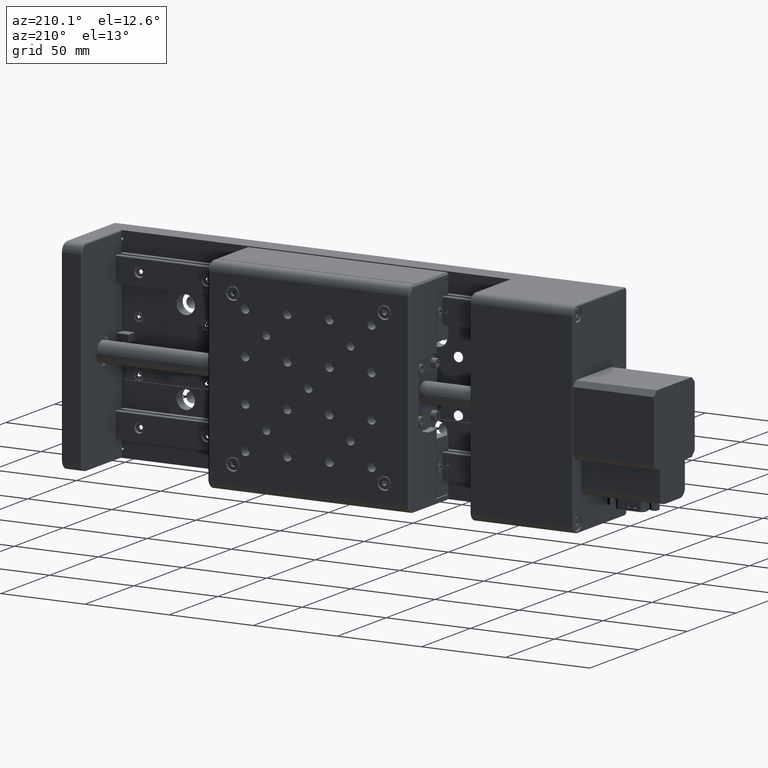
[diagram: clean part render]
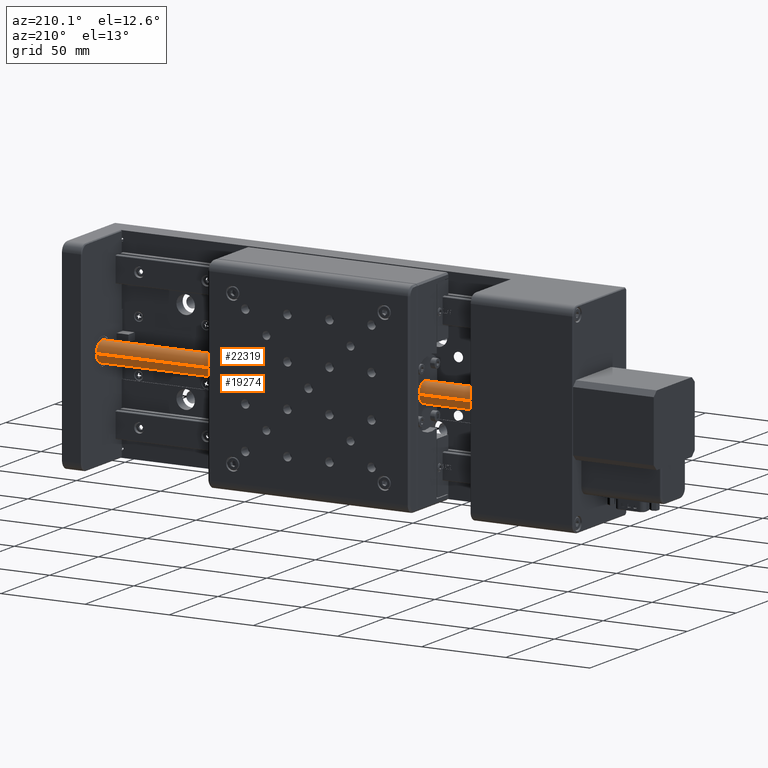
[diagram: same view with one multi-face feature highlighted, each face labeled with its STEP entity id]
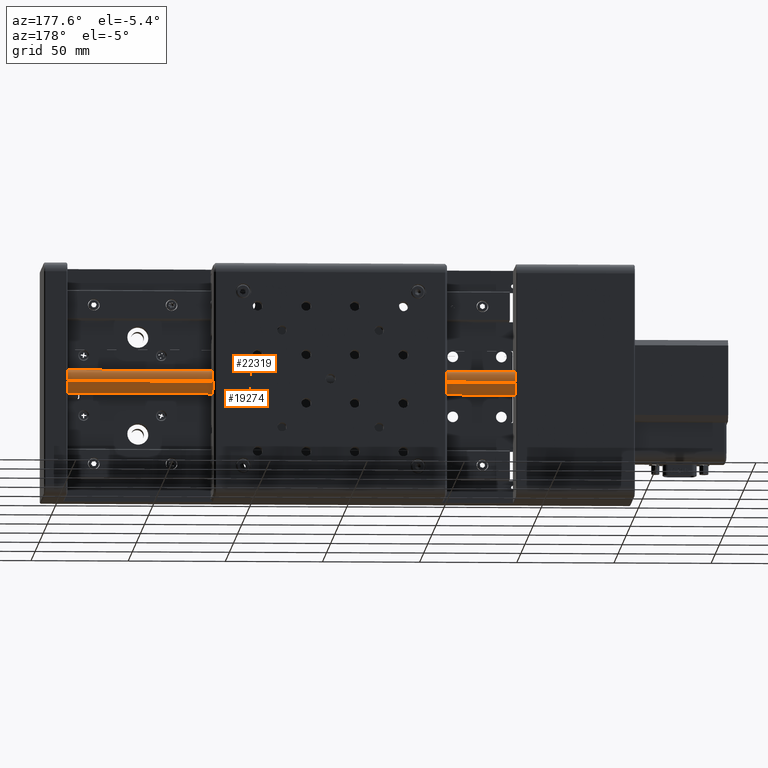
[diagram: same view with one multi-face feature highlighted, each face labeled with its STEP entity id]
A machine part, auxiliary view. The highlighted faces form ONE feature: a constant-radius fillet chain: 2 tangent blend faces with common blend radius 6 mm. The faces share edges in the B-rep.
A second angle (auxiliary view) of the same feature is appended — it is thin or edge-on in the first view.
Their STEP definitions:
[1] entity #22319 (Cylinder):
#294 = VECTOR ( 'NONE', #13156, 1000.000000000000000 ) ;
#410 = DIRECTION ( 'NONE',  ( 1.000000000000000000, 0.0000000000000000000, 0.0000000000000000000 ) ) ;
#1361 = EDGE_CURVE ( 'NONE', #15493, #36939, #4784, .T. ) ;
#4784 = CIRCLE ( 'NONE', #30787, 6.000000000000001800 ) ;
#6179 = EDGE_CURVE ( 'NONE', #10038, #26741, #37804, .T. ) ;
#7463 = CARTESIAN_POINT ( 'NONE',  ( 543.9875862552705700, 33.99999999999839400, 426.9433306992482400 ) ) ;
#7582 = DIRECTION ( 'NONE',  ( 0.0000000000000000000, -1.000000000000000000, 1.850371707708593800E-014 ) ) ;
#10038 = VERTEX_POINT ( 'NONE', #32347 ) ;
#11654 = CARTESIAN_POINT ( 'NONE',  ( 543.9875862552705700, 27.99999999999839100, 426.9433306992483500 ) ) ;
#13008 = AXIS2_PLACEMENT_3D ( 'NONE', #7463, #25182, #7582 ) ;
#13156 = DIRECTION ( 'NONE',  ( -1.000000000000000000, 0.0000000000000000000, 0.0000000000000000000 ) ) ;
#14266 = ORIENTED_EDGE ( 'NONE', *, *, #38669, .T. ) ;
#15293 = CARTESIAN_POINT ( 'NONE',  ( 306.9875862552705700, 27.99999999999839100, 426.9433306992483500 ) ) ;
#15493 = VERTEX_POINT ( 'NONE', #15293 ) ;
#16048 = CARTESIAN_POINT ( 'NONE',  ( 306.9875862552705700, 39.99999999999839400, 426.9433306992481200 ) ) ;
#18656 = EDGE_CURVE ( 'NONE', #26741, #15493, #34853, .T. ) ;
#19932 = CYLINDRICAL_SURFACE ( 'NONE', #13008, 6.000000000000001800 ) ;
#19982 = DIRECTION ( 'NONE',  ( 0.0000000000000000000, -1.000000000000000000, 1.850371707708593800E-014 ) ) ;
#20226 = CARTESIAN_POINT ( 'NONE',  ( 543.9875862552705700, 39.99999999999840100, 426.9433306992481200 ) ) ;
#22319 = ADVANCED_FACE ( 'NONE', ( #28312 ), #19932, .T. ) ;
#23755 = DIRECTION ( 'NONE',  ( -1.000000000000000000, 0.0000000000000000000, 0.0000000000000000000 ) ) ;
#25182 = DIRECTION ( 'NONE',  ( -1.000000000000000000, 0.0000000000000000000, 0.0000000000000000000 ) ) ;
#25424 = ORIENTED_EDGE ( 'NONE', *, *, #6179, .F. ) ;
#26097 = CARTESIAN_POINT ( 'NONE',  ( 306.9875862552705700, 33.99999999999839400, 426.9433306992482400 ) ) ;
#26193 = EDGE_LOOP ( 'NONE', ( #25424, #14266, #33062, #27530 ) ) ;
#26741 = VERTEX_POINT ( 'NONE', #11654 ) ;
#27530 = ORIENTED_EDGE ( 'NONE', *, *, #18656, .F. ) ;
#28312 = FACE_OUTER_BOUND ( 'NONE', #26193, .T. ) ;
#28594 = DIRECTION ( 'NONE',  ( -1.000000000000000000, 0.0000000000000000000, 0.0000000000000000000 ) ) ;
#30787 = AXIS2_PLACEMENT_3D ( 'NONE', #26097, #28594, #19982 ) ;
#31174 = CARTESIAN_POINT ( 'NONE',  ( 543.9875862552705700, 27.99999999999839100, 426.9433306992483500 ) ) ;
#32347 = CARTESIAN_POINT ( 'NONE',  ( 543.9875862552705700, 39.99999999999839400, 426.9433306992481200 ) ) ;
#32368 = AXIS2_PLACEMENT_3D ( 'NONE', #36041, #410, #33268 ) ;
#32913 = LINE ( 'NONE', #20226, #35720 ) ;
#33062 = ORIENTED_EDGE ( 'NONE', *, *, #1361, .F. ) ;
#33268 = DIRECTION ( 'NONE',  ( 0.0000000000000000000, 1.000000000000000000, -1.850371707708592600E-014 ) ) ;
#34853 = LINE ( 'NONE', #31174, #294 ) ;
#35720 = VECTOR ( 'NONE', #23755, 1000.000000000000000 ) ;
#36041 = CARTESIAN_POINT ( 'NONE',  ( 543.9875862552705700, 33.99999999999839400, 426.9433306992482400 ) ) ;
#36939 = VERTEX_POINT ( 'NONE', #16048 ) ;
#37804 = CIRCLE ( 'NONE', #32368, 6.000000000000005300 ) ;
#38669 = EDGE_CURVE ( 'NONE', #10038, #36939, #32913, .T. ) ;
[2] entity #19274 (Cylinder):
#8 = DIRECTION ( 'NONE',  ( 0.0000000000000000000, 1.000000000000000000, -1.850371707708592600E-014 ) ) ;
#294 = VECTOR ( 'NONE', #13156, 1000.000000000000000 ) ;
#1414 = ORIENTED_EDGE ( 'NONE', *, *, #18362, .F. ) ;
#2749 = EDGE_LOOP ( 'NONE', ( #33937, #24448, #5296, #1414 ) ) ;
#4232 = AXIS2_PLACEMENT_3D ( 'NONE', #11483, #17466, #8 ) ;
#5296 = ORIENTED_EDGE ( 'NONE', *, *, #18656, .T. ) ;
#5734 = DIRECTION ( 'NONE',  ( -1.000000000000000000, 0.0000000000000000000, 0.0000000000000000000 ) ) ;
#10038 = VERTEX_POINT ( 'NONE', #32347 ) ;
#11483 = CARTESIAN_POINT ( 'NONE',  ( 543.9875862552705700, 33.99999999999839400, 426.9433306992482400 ) ) ;
#11654 = CARTESIAN_POINT ( 'NONE',  ( 543.9875862552705700, 27.99999999999839100, 426.9433306992483500 ) ) ;
#13156 = DIRECTION ( 'NONE',  ( -1.000000000000000000, 0.0000000000000000000, 0.0000000000000000000 ) ) ;
#13641 = CYLINDRICAL_SURFACE ( 'NONE', #18539, 6.000000000000001800 ) ;
#14083 = FACE_OUTER_BOUND ( 'NONE', #2749, .T. ) ;
#14226 = DIRECTION ( 'NONE',  ( -1.000000000000000000, 0.0000000000000000000, 0.0000000000000000000 ) ) ;
#14603 = DIRECTION ( 'NONE',  ( 0.0000000000000000000, -1.000000000000000000, 1.850371707708593800E-014 ) ) ;
#14746 = CIRCLE ( 'NONE', #17653, 6.000000000000001800 ) ;
#15293 = CARTESIAN_POINT ( 'NONE',  ( 306.9875862552705700, 27.99999999999839100, 426.9433306992483500 ) ) ;
#15493 = VERTEX_POINT ( 'NONE', #15293 ) ;
#16048 = CARTESIAN_POINT ( 'NONE',  ( 306.9875862552705700, 39.99999999999839400, 426.9433306992481200 ) ) ;
#17466 = DIRECTION ( 'NONE',  ( 1.000000000000000000, 0.0000000000000000000, 0.0000000000000000000 ) ) ;
#17653 = AXIS2_PLACEMENT_3D ( 'NONE', #29087, #14226, #14603 ) ;
#17787 = CIRCLE ( 'NONE', #4232, 6.000000000000005300 ) ;
#18362 = EDGE_CURVE ( 'NONE', #36939, #15493, #14746, .T. ) ;
#18539 = AXIS2_PLACEMENT_3D ( 'NONE', #26664, #5734, #29840 ) ;
#18656 = EDGE_CURVE ( 'NONE', #26741, #15493, #34853, .T. ) ;
#19274 = ADVANCED_FACE ( 'NONE', ( #14083 ), #13641, .T. ) ;
#19563 = EDGE_CURVE ( 'NONE', #26741, #10038, #17787, .T. ) ;
#20226 = CARTESIAN_POINT ( 'NONE',  ( 543.9875862552705700, 39.99999999999840100, 426.9433306992481200 ) ) ;
#23755 = DIRECTION ( 'NONE',  ( -1.000000000000000000, 0.0000000000000000000, 0.0000000000000000000 ) ) ;
#24448 = ORIENTED_EDGE ( 'NONE', *, *, #19563, .F. ) ;
#26664 = CARTESIAN_POINT ( 'NONE',  ( 543.9875862552705700, 33.99999999999839400, 426.9433306992482400 ) ) ;
#26741 = VERTEX_POINT ( 'NONE', #11654 ) ;
#29087 = CARTESIAN_POINT ( 'NONE',  ( 306.9875862552705700, 33.99999999999839400, 426.9433306992482400 ) ) ;
#29840 = DIRECTION ( 'NONE',  ( 0.0000000000000000000, -1.000000000000000000, 1.850371707708593800E-014 ) ) ;
#31174 = CARTESIAN_POINT ( 'NONE',  ( 543.9875862552705700, 27.99999999999839100, 426.9433306992483500 ) ) ;
#32347 = CARTESIAN_POINT ( 'NONE',  ( 543.9875862552705700, 39.99999999999839400, 426.9433306992481200 ) ) ;
#32913 = LINE ( 'NONE', #20226, #35720 ) ;
#33937 = ORIENTED_EDGE ( 'NONE', *, *, #38669, .F. ) ;
#34853 = LINE ( 'NONE', #31174, #294 ) ;
#35720 = VECTOR ( 'NONE', #23755, 1000.000000000000000 ) ;
#36939 = VERTEX_POINT ( 'NONE', #16048 ) ;
#38669 = EDGE_CURVE ( 'NONE', #10038, #36939, #32913, .T. ) ;